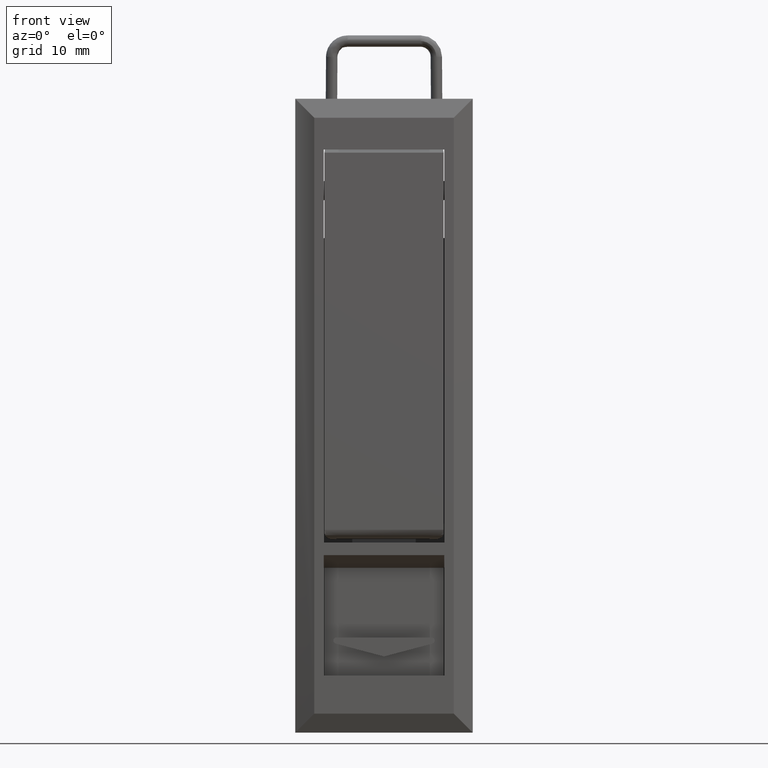
[diagram: clean part render]
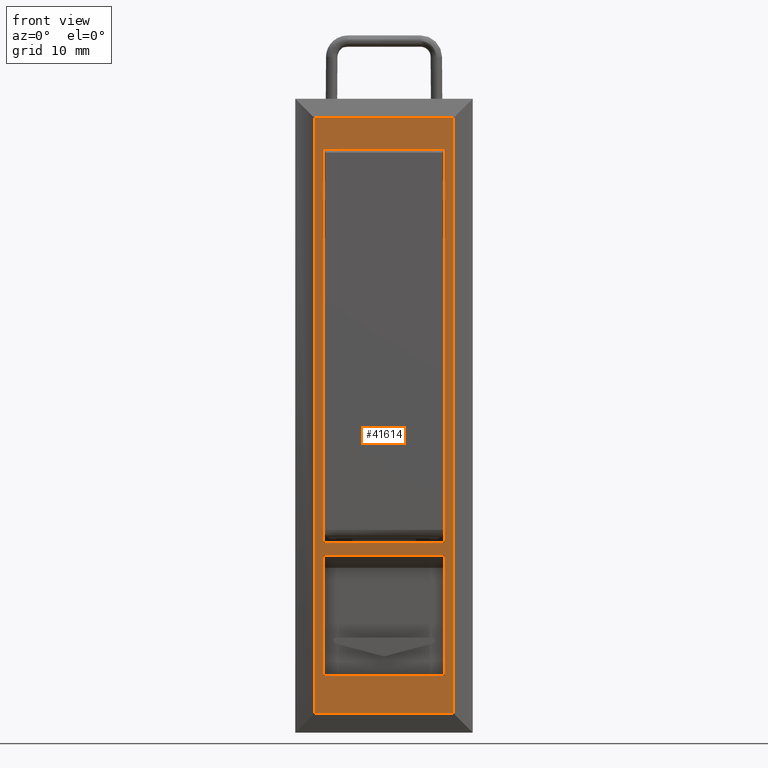
[diagram: same view with one face highlighted and labeled with its STEP entity id]
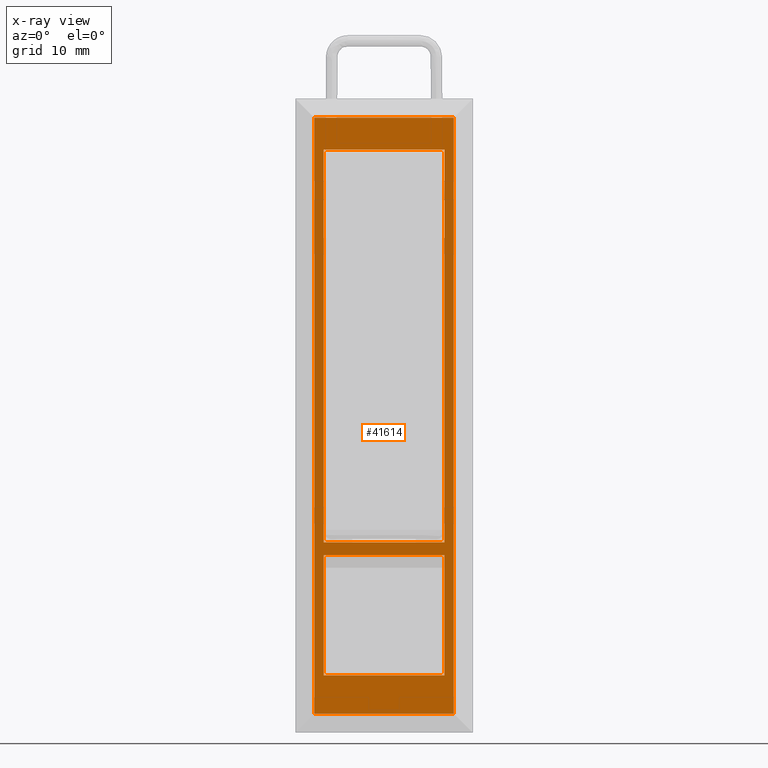
[diagram: x-ray of the same camera — body ghosted, the highlighted face saturated]
A machine part, front view. The second image highlights one B-rep face of the part: STEP entity #41614.
The next image is the same camera in x-ray: the body ghosted, the highlighted face saturated — about 0% of this face is hidden behind the body in this view.
In plain terms, the highlighted face is a freeform B-spline surface patch.
Its self-contained STEP definition (entity closure, byte-faithful):
#40707=CARTESIAN_POINT('',(-1.499999999999914,9.500000000000000,28.0));
#40708=VERTEX_POINT('',#40707);
#40721=CARTESIAN_POINT('',(-1.499999999999946,-9.500000000000000,28.0));
#40722=VERTEX_POINT('',#40721);
#40728=CARTESIAN_POINT('',(-1.499999999999946,-9.500000000000000,28.0));
#40729=CARTESIAN_POINT('',(-1.499999999999914,9.500000000000000,28.0));
#40730=QUASI_UNIFORM_CURVE('',1,(#40728,#40729),.UNSPECIFIED.,.F.,.U.);
#40731=EDGE_CURVE('',#40722,#40708,#40730,.T.);
#40741=CARTESIAN_POINT('',(-1.499999999999946,9.500000000000000,30.0));
#40742=VERTEX_POINT('',#40741);
#40750=CARTESIAN_POINT('',(-1.499999999999914,-9.500000000000000,30.0));
#40751=VERTEX_POINT('',#40750);
#40752=CARTESIAN_POINT('',(-1.499999999999914,-9.500000000000000,30.0));
#40753=CARTESIAN_POINT('',(-1.499999999999946,9.500000000000000,30.0));
#40754=QUASI_UNIFORM_CURVE('',1,(#40752,#40753),.UNSPECIFIED.,.F.,.U.);
#40755=EDGE_CURVE('',#40751,#40742,#40754,.T.);
#41195=CARTESIAN_POINT('',(-1.499999999999946,9.500000000000000,92.000009999999989));
#41196=VERTEX_POINT('',#41195);
#41203=CARTESIAN_POINT('',(-1.499999999999946,-9.500000000000000,92.000009999999989));
#41204=VERTEX_POINT('',#41203);
#41210=CARTESIAN_POINT('',(-1.499999999999946,-9.500000000000000,92.000009999999989));
#41211=CARTESIAN_POINT('',(-1.499999999999946,9.500000000000000,92.000009999999989));
#41212=QUASI_UNIFORM_CURVE('',1,(#41210,#41211),.UNSPECIFIED.,.F.,.U.);
#41213=EDGE_CURVE('',#41204,#41196,#41212,.T.);
#41359=CARTESIAN_POINT('',(-1.499999999999912,-11.0,3.0));
#41360=VERTEX_POINT('',#41359);
#41361=CARTESIAN_POINT('',(-1.499999999999912,-11.0,97.0));
#41362=VERTEX_POINT('',#41361);
#41363=CARTESIAN_POINT('',(-1.499999999999912,-11.0,3.0));
#41364=CARTESIAN_POINT('',(-1.499999999999912,-11.0,97.0));
#41365=QUASI_UNIFORM_CURVE('',1,(#41363,#41364),.UNSPECIFIED.,.F.,.U.);
#41366=EDGE_CURVE('',#41360,#41362,#41365,.T.);
#41404=CARTESIAN_POINT('',(-1.499999999999916,11.0,3.0));
#41405=VERTEX_POINT('',#41404);
#41411=CARTESIAN_POINT('',(-1.499999999999916,11.0,97.0));
#41412=VERTEX_POINT('',#41411);
#41413=CARTESIAN_POINT('',(-1.499999999999916,11.0,3.0));
#41414=CARTESIAN_POINT('',(-1.499999999999916,11.0,97.0));
#41415=QUASI_UNIFORM_CURVE('',1,(#41413,#41414),.UNSPECIFIED.,.F.,.U.);
#41416=EDGE_CURVE('',#41405,#41412,#41415,.T.);
#41516=CARTESIAN_POINT('',(-1.499999999999916,11.0,3.0));
#41517=CARTESIAN_POINT('',(-1.499999999999912,-11.0,3.0));
#41518=QUASI_UNIFORM_CURVE('',1,(#41516,#41517),.UNSPECIFIED.,.F.,.U.);
#41519=EDGE_CURVE('',#41405,#41360,#41518,.T.);
#41535=CARTESIAN_POINT('',(-1.499999999999916,11.0,97.0));
#41536=CARTESIAN_POINT('',(-1.499999999999912,-11.0,97.0));
#41537=QUASI_UNIFORM_CURVE('',1,(#41535,#41536),.UNSPECIFIED.,.F.,.U.);
#41538=EDGE_CURVE('',#41412,#41362,#41537,.T.);
#41567=CARTESIAN_POINT('',(-1.499999999999914,12.098899957359730,101.695299817809800));
#41568=CARTESIAN_POINT('',(-1.499999999999914,-12.098900547445711,101.695299817809800));
#41569=CARTESIAN_POINT('',(-1.499999999999914,12.098899957359730,-1.695302339086233));
#41570=CARTESIAN_POINT('',(-1.499999999999914,-12.098900547445711,-1.695302339086233));
#41571=B_SPLINE_SURFACE_WITH_KNOTS('',1,1,((#41567,#41569),(#41568,#41570)),.UNSPECIFIED.,.F.,.F.,.U.,(2,2),(2,2),(0.0,24.197800504805450),(0.0,103.390602156895990),.UNSPECIFIED.);
#41572=ORIENTED_EDGE('',*,*,#41366,.T.);
#41573=ORIENTED_EDGE('',*,*,#41538,.F.);
#41574=ORIENTED_EDGE('',*,*,#41416,.F.);
#41575=ORIENTED_EDGE('',*,*,#41519,.T.);
#41576=EDGE_LOOP('',(#41572,#41573,#41574,#41575));
#41577=FACE_OUTER_BOUND('',#41576,.T.);
#41578=CARTESIAN_POINT('',(-1.499999999999946,9.500000000000000,9.0));
#41579=VERTEX_POINT('',#41578);
#41580=CARTESIAN_POINT('',(-1.499999999999914,-9.500000000000000,9.0));
#41581=VERTEX_POINT('',#41580);
#41582=CARTESIAN_POINT('',(-1.499999999999946,9.500000000000000,9.0));
#41583=CARTESIAN_POINT('',(-1.499999999999914,-9.500000000000000,9.0));
#41584=QUASI_UNIFORM_CURVE('',1,(#41582,#41583),.UNSPECIFIED.,.F.,.U.);
#41585=EDGE_CURVE('',#41579,#41581,#41584,.T.);
#41586=ORIENTED_EDGE('',*,*,#41585,.F.);
#41587=CARTESIAN_POINT('',(-1.499999999999914,9.500000000000000,28.0));
#41588=CARTESIAN_POINT('',(-1.499999999999946,9.500000000000000,9.0));
#41589=QUASI_UNIFORM_CURVE('',1,(#41587,#41588),.UNSPECIFIED.,.F.,.U.);
#41590=EDGE_CURVE('',#40708,#41579,#41589,.T.);
#41591=ORIENTED_EDGE('',*,*,#41590,.F.);
#41592=ORIENTED_EDGE('',*,*,#40731,.F.);
#41593=CARTESIAN_POINT('',(-1.499999999999914,-9.500000000000000,9.0));
#41594=CARTESIAN_POINT('',(-1.499999999999946,-9.500000000000000,28.0));
#41595=QUASI_UNIFORM_CURVE('',1,(#41593,#41594),.UNSPECIFIED.,.F.,.U.);
#41596=EDGE_CURVE('',#41581,#40722,#41595,.T.);
#41597=ORIENTED_EDGE('',*,*,#41596,.F.);
#41598=EDGE_LOOP('',(#41586,#41591,#41592,#41597));
#41599=FACE_BOUND('',#41598,.T.);
#41600=CARTESIAN_POINT('',(-1.499999999999946,9.500000000000000,92.000009999999989));
#41601=CARTESIAN_POINT('',(-1.499999999999946,9.500000000000000,30.0));
#41602=QUASI_UNIFORM_CURVE('',1,(#41600,#41601),.UNSPECIFIED.,.F.,.U.);
#41603=EDGE_CURVE('',#41196,#40742,#41602,.T.);
#41604=ORIENTED_EDGE('',*,*,#41603,.F.);
#41605=ORIENTED_EDGE('',*,*,#41213,.F.);
#41606=CARTESIAN_POINT('',(-1.499999999999914,-9.500000000000000,30.0));
#41607=CARTESIAN_POINT('',(-1.499999999999946,-9.500000000000000,92.000009999999989));
#41608=QUASI_UNIFORM_CURVE('',1,(#41606,#41607),.UNSPECIFIED.,.F.,.U.);
#41609=EDGE_CURVE('',#40751,#41204,#41608,.T.);
#41610=ORIENTED_EDGE('',*,*,#41609,.F.);
#41611=ORIENTED_EDGE('',*,*,#40755,.T.);
#41612=EDGE_LOOP('',(#41604,#41605,#41610,#41611));
#41613=FACE_BOUND('',#41612,.T.);
#41614=ADVANCED_FACE('',(#41577,#41599,#41613),#41571,.F.);